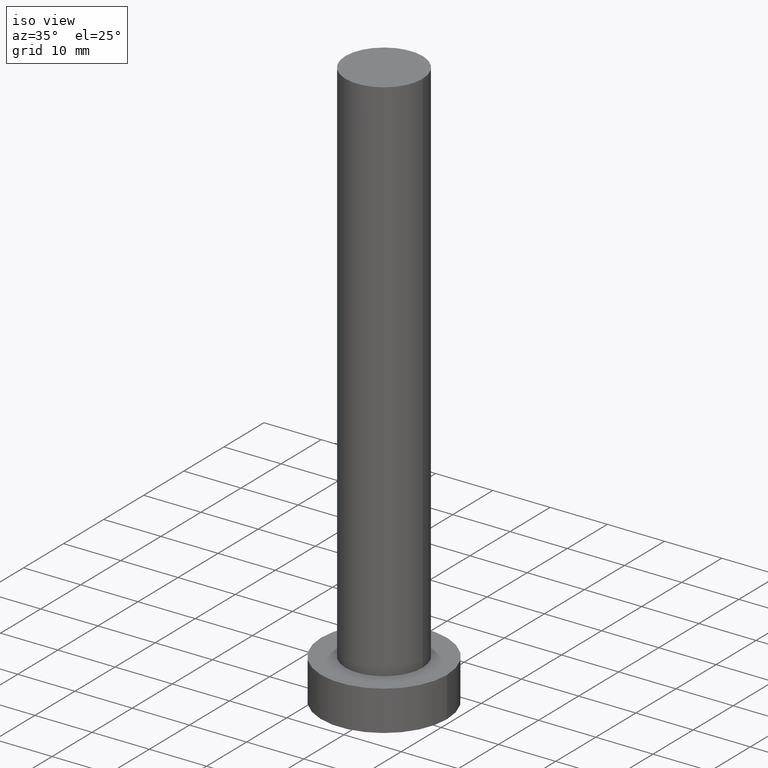
[diagram: clean part render]
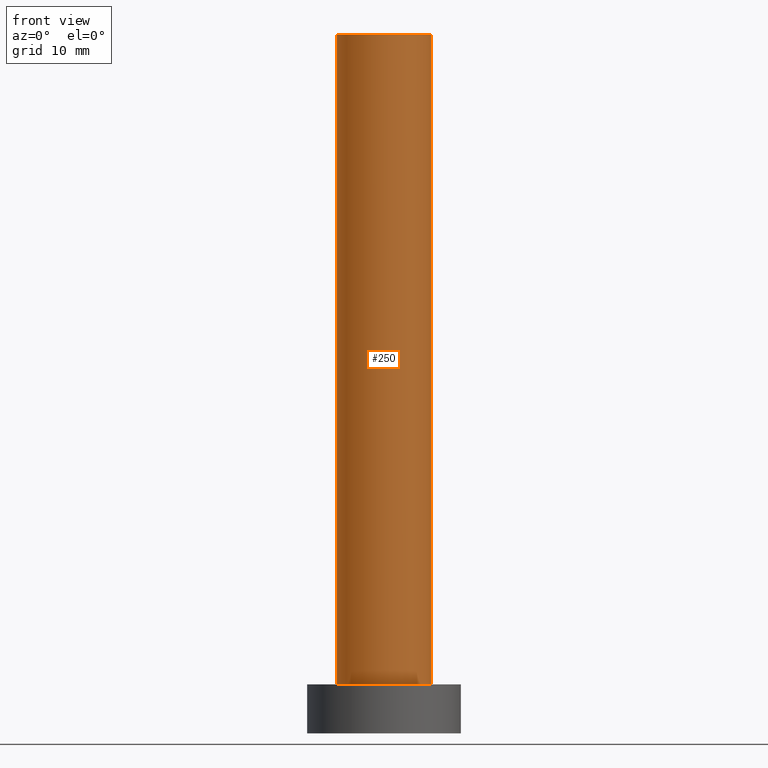
[diagram: tour spotlight — one face highlighted and labeled with its STEP entity id]
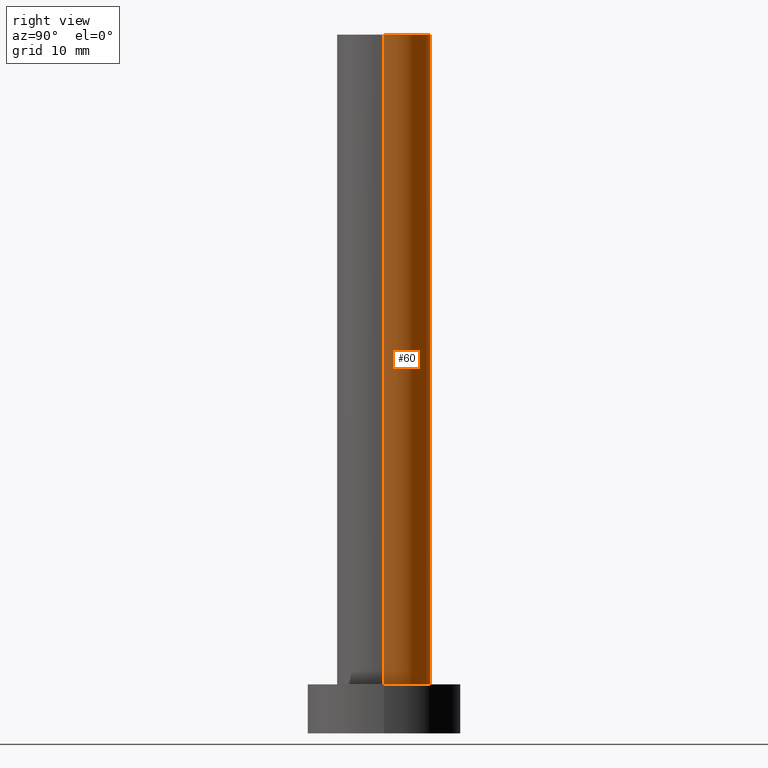
[diagram: tour spotlight — one face highlighted and labeled with its STEP entity id]
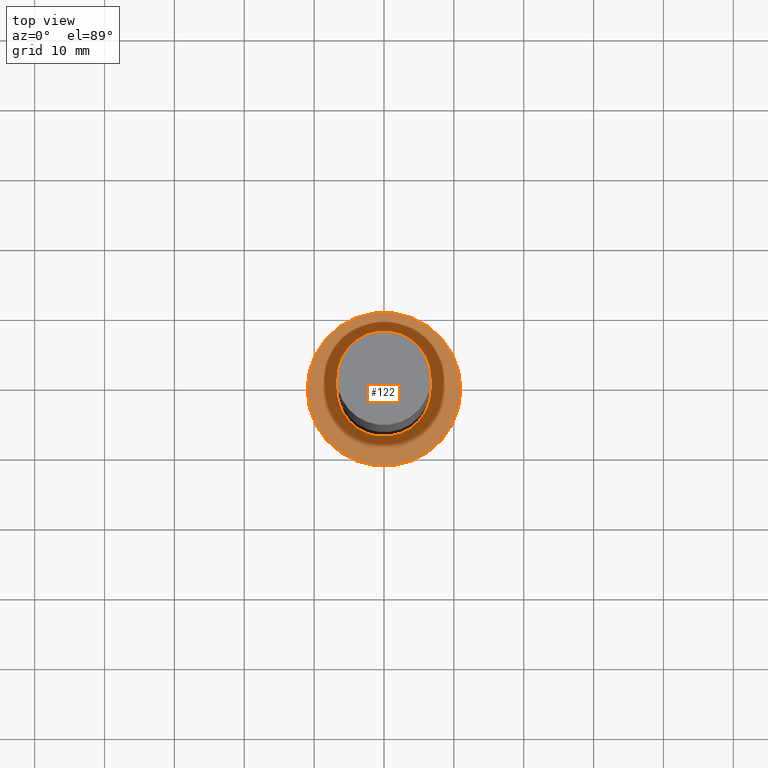
[diagram: tour spotlight — one face highlighted and labeled with its STEP entity id]
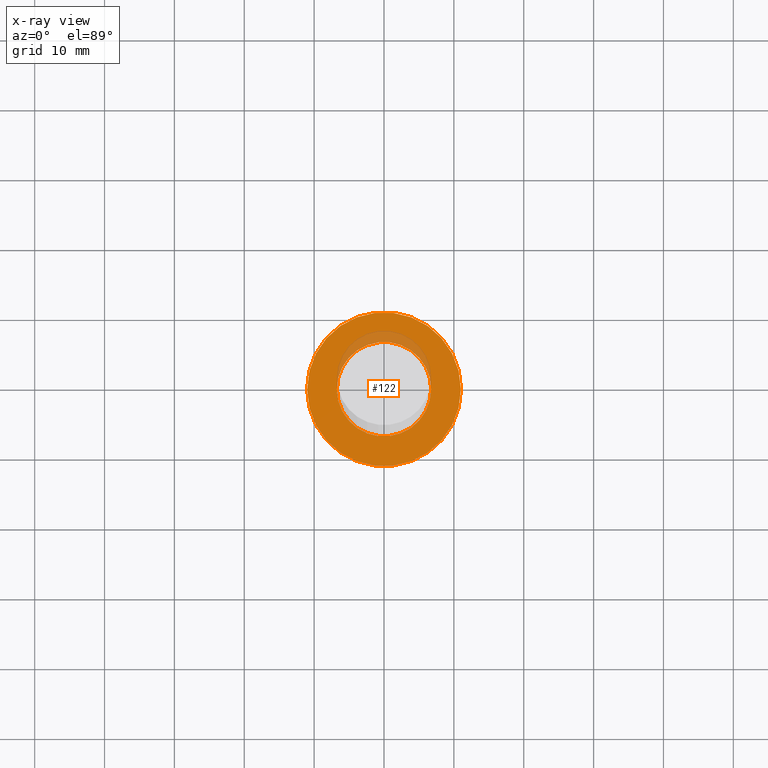
[diagram: x-ray of the same camera — body ghosted, this tour face saturated]
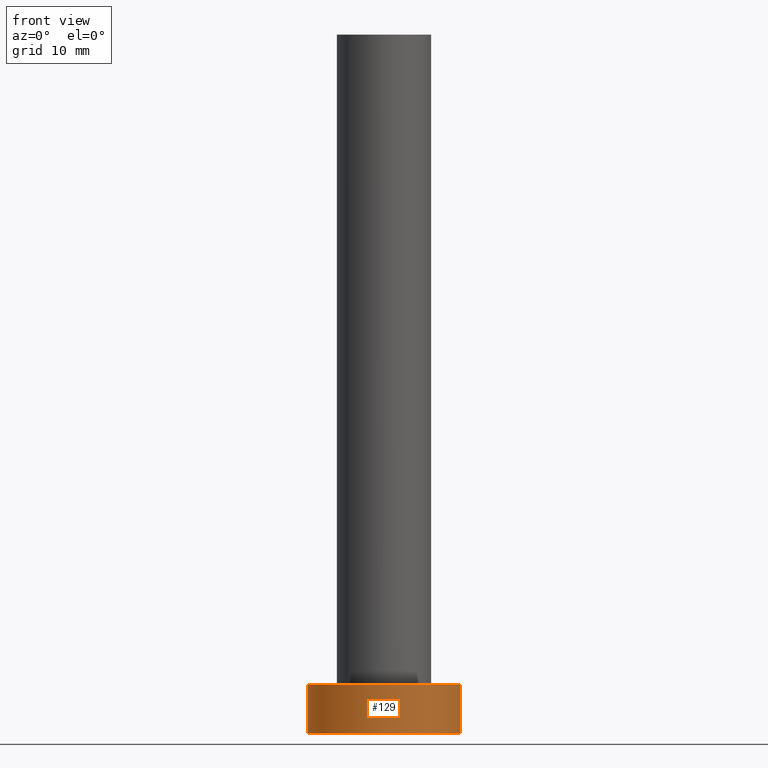
[diagram: tour spotlight — one face highlighted and labeled with its STEP entity id]
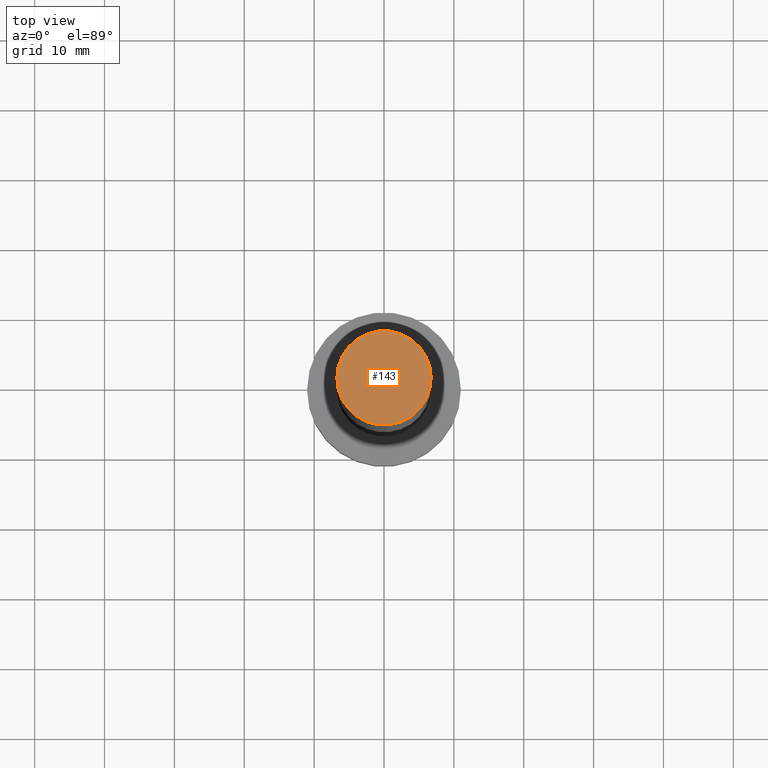
[diagram: tour spotlight — one face highlighted and labeled with its STEP entity id]
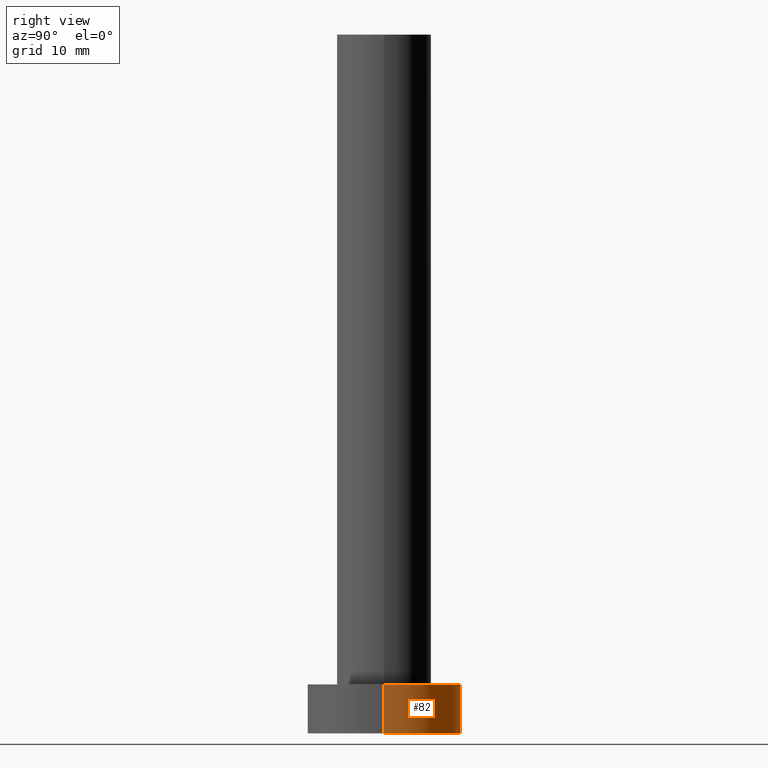
[diagram: tour spotlight — one face highlighted and labeled with its STEP entity id]
A machine part: a face-by-face anatomy tour. The part has 7 B-rep faces; the first image is the clean iso view, then the 6 largest visible faces are spotlighted one at a time (largest first), each with its STEP entity span.

Face 1 — front view, entity #250. In plain terms, the highlighted cylindrical surface (partial cylindrical patch) has radius 6.75 mm, axis along (-0, -0, -1).
Definition (entity closure, byte-faithful):
#2 = DIRECTION ( 'NONE',  ( 1.000000000000000000, 0.000000000000000000, 0.000000000000000000 ) ) ;
#5 = CARTESIAN_POINT ( 'NONE',  ( 6.750000000000000000, 8.266365894244632361E-16, 7.000000000000000000 ) ) ;
#8 = CARTESIAN_POINT ( 'NONE',  ( 0.000000000000000000, 0.000000000000000000, 100.0000000000000000 ) ) ;
#9 = AXIS2_PLACEMENT_3D ( 'NONE', #241, #36, #2 ) ;
#12 = DIRECTION ( 'NONE',  ( -0.000000000000000000, -0.000000000000000000, -1.000000000000000000 ) ) ;
#16 = CARTESIAN_POINT ( 'NONE',  ( -6.750000000000000000, 0.000000000000000000, 7.000000000000000000 ) ) ;
#24 = CARTESIAN_POINT ( 'NONE',  ( 0.000000000000000000, 0.000000000000000000, 100.0000000000000000 ) ) ;
#27 = DIRECTION ( 'NONE',  ( -0.000000000000000000, -0.000000000000000000, -1.000000000000000000 ) ) ;
#28 = AXIS2_PLACEMENT_3D ( 'NONE', #24, #190, #170 ) ;
#29 = VERTEX_POINT ( 'NONE', #5 ) ;
#34 = ORIENTED_EDGE ( 'NONE', *, *, #242, .T. ) ;
#36 = DIRECTION ( 'NONE',  ( 0.000000000000000000, 0.000000000000000000, 1.000000000000000000 ) ) ;
#40 = VECTOR ( 'NONE', #230, 1000.000000000000000 ) ;
#76 = EDGE_CURVE ( 'NONE', #95, #29, #215, .T. ) ;
#89 = LINE ( 'NONE', #149, #40 ) ;
#95 = VERTEX_POINT ( 'NONE', #16 ) ;
#97 = VERTEX_POINT ( 'NONE', #121 ) ;
#109 = CARTESIAN_POINT ( 'NONE',  ( -6.750000000000000000, 0.000000000000000000, 100.0000000000000000 ) ) ;
#111 = DIRECTION ( 'NONE',  ( -1.000000000000000000, 0.000000000000000000, 0.000000000000000000 ) ) ;
#121 = CARTESIAN_POINT ( 'NONE',  ( 6.750000000000000000, 8.266365894244632361E-16, 100.0000000000000000 ) ) ;
#130 = LINE ( 'NONE', #172, #154 ) ;
#146 = CYLINDRICAL_SURFACE ( 'NONE', #169, 6.750000000000000000 ) ;
#149 = CARTESIAN_POINT ( 'NONE',  ( -6.750000000000000000, 0.000000000000000000, 100.0000000000000000 ) ) ;
#150 = ORIENTED_EDGE ( 'NONE', *, *, #76, .T. ) ;
#154 = VECTOR ( 'NONE', #12, 1000.000000000000000 ) ;
#156 = ORIENTED_EDGE ( 'NONE', *, *, #245, .F. ) ;
#169 = AXIS2_PLACEMENT_3D ( 'NONE', #8, #27, #111 ) ;
#170 = DIRECTION ( 'NONE',  ( 1.000000000000000000, 0.000000000000000000, 0.000000000000000000 ) ) ;
#172 = CARTESIAN_POINT ( 'NONE',  ( 6.750000000000000000, 8.266365894244632361E-16, 100.0000000000000000 ) ) ;
#190 = DIRECTION ( 'NONE',  ( 0.000000000000000000, 0.000000000000000000, 1.000000000000000000 ) ) ;
#191 = ORIENTED_EDGE ( 'NONE', *, *, #254, .F. ) ;
#210 = FACE_OUTER_BOUND ( 'NONE', #255, .T. ) ;
#215 = CIRCLE ( 'NONE', #9, 6.750000000000000000 ) ;
#225 = VERTEX_POINT ( 'NONE', #109 ) ;
#230 = DIRECTION ( 'NONE',  ( -0.000000000000000000, -0.000000000000000000, -1.000000000000000000 ) ) ;
#241 = CARTESIAN_POINT ( 'NONE',  ( 0.000000000000000000, 0.000000000000000000, 7.000000000000000000 ) ) ;
#242 = EDGE_CURVE ( 'NONE', #225, #95, #89, .T. ) ;
#245 = EDGE_CURVE ( 'NONE', #225, #97, #252, .T. ) ;
#250 = ADVANCED_FACE ( 'NONE', ( #210 ), #146, .T. ) ;
#252 = CIRCLE ( 'NONE', #28, 6.750000000000000000 ) ;
#254 = EDGE_CURVE ( 'NONE', #97, #29, #130, .T. ) ;
#255 = EDGE_LOOP ( 'NONE', ( #191, #156, #34, #150 ) ) ;

Face 2 — right view, entity #60. In plain terms, the highlighted cylindrical surface (partial cylindrical patch) has radius 6.75 mm, axis along (-0, -0, -1).
Definition (entity closure, byte-faithful):
#3 = FACE_OUTER_BOUND ( 'NONE', #26, .T. ) ;
#5 = CARTESIAN_POINT ( 'NONE',  ( 6.750000000000000000, 8.266365894244632361E-16, 7.000000000000000000 ) ) ;
#6 = DIRECTION ( 'NONE',  ( -0.000000000000000000, -0.000000000000000000, -1.000000000000000000 ) ) ;
#10 = DIRECTION ( 'NONE',  ( 1.000000000000000000, 0.000000000000000000, 0.000000000000000000 ) ) ;
#12 = DIRECTION ( 'NONE',  ( -0.000000000000000000, -0.000000000000000000, -1.000000000000000000 ) ) ;
#15 = ORIENTED_EDGE ( 'NONE', *, *, #18, .T. ) ;
#16 = CARTESIAN_POINT ( 'NONE',  ( -6.750000000000000000, 0.000000000000000000, 7.000000000000000000 ) ) ;
#18 = EDGE_CURVE ( 'NONE', #29, #95, #133, .T. ) ;
#26 = EDGE_LOOP ( 'NONE', ( #75, #35, #15, #116 ) ) ;
#29 = VERTEX_POINT ( 'NONE', #5 ) ;
#35 = ORIENTED_EDGE ( 'NONE', *, *, #254, .T. ) ;
#40 = VECTOR ( 'NONE', #230, 1000.000000000000000 ) ;
#41 = DIRECTION ( 'NONE',  ( 0.000000000000000000, 0.000000000000000000, 1.000000000000000000 ) ) ;
#44 = CARTESIAN_POINT ( 'NONE',  ( 0.000000000000000000, 0.000000000000000000, 100.0000000000000000 ) ) ;
#50 = AXIS2_PLACEMENT_3D ( 'NONE', #163, #41, #185 ) ;
#52 = CIRCLE ( 'NONE', #222, 6.750000000000000000 ) ;
#60 = ADVANCED_FACE ( 'NONE', ( #3 ), #85, .T. ) ;
#68 = DIRECTION ( 'NONE',  ( 0.000000000000000000, 0.000000000000000000, 1.000000000000000000 ) ) ;
#75 = ORIENTED_EDGE ( 'NONE', *, *, #234, .F. ) ;
#85 = CYLINDRICAL_SURFACE ( 'NONE', #235, 6.750000000000000000 ) ;
#89 = LINE ( 'NONE', #149, #40 ) ;
#95 = VERTEX_POINT ( 'NONE', #16 ) ;
#97 = VERTEX_POINT ( 'NONE', #121 ) ;
#109 = CARTESIAN_POINT ( 'NONE',  ( -6.750000000000000000, 0.000000000000000000, 100.0000000000000000 ) ) ;
#116 = ORIENTED_EDGE ( 'NONE', *, *, #242, .F. ) ;
#118 = CARTESIAN_POINT ( 'NONE',  ( 0.000000000000000000, 0.000000000000000000, 100.0000000000000000 ) ) ;
#121 = CARTESIAN_POINT ( 'NONE',  ( 6.750000000000000000, 8.266365894244632361E-16, 100.0000000000000000 ) ) ;
#130 = LINE ( 'NONE', #172, #154 ) ;
#133 = CIRCLE ( 'NONE', #50, 6.750000000000000000 ) ;
#138 = DIRECTION ( 'NONE',  ( -1.000000000000000000, 0.000000000000000000, 0.000000000000000000 ) ) ;
#149 = CARTESIAN_POINT ( 'NONE',  ( -6.750000000000000000, 0.000000000000000000, 100.0000000000000000 ) ) ;
#154 = VECTOR ( 'NONE', #12, 1000.000000000000000 ) ;
#163 = CARTESIAN_POINT ( 'NONE',  ( 0.000000000000000000, 0.000000000000000000, 7.000000000000000000 ) ) ;
#172 = CARTESIAN_POINT ( 'NONE',  ( 6.750000000000000000, 8.266365894244632361E-16, 100.0000000000000000 ) ) ;
#185 = DIRECTION ( 'NONE',  ( 1.000000000000000000, 0.000000000000000000, 0.000000000000000000 ) ) ;
#222 = AXIS2_PLACEMENT_3D ( 'NONE', #44, #68, #10 ) ;
#225 = VERTEX_POINT ( 'NONE', #109 ) ;
#230 = DIRECTION ( 'NONE',  ( -0.000000000000000000, -0.000000000000000000, -1.000000000000000000 ) ) ;
#234 = EDGE_CURVE ( 'NONE', #97, #225, #52, .T. ) ;
#235 = AXIS2_PLACEMENT_3D ( 'NONE', #118, #6, #138 ) ;
#242 = EDGE_CURVE ( 'NONE', #225, #95, #89, .T. ) ;
#254 = EDGE_CURVE ( 'NONE', #97, #29, #130, .T. ) ;

Face 3 — top view, entity #122. An x-ray twin of the same camera follows (body ghosted, this face saturated) — the face is partly hidden behind the body. In plain terms, the highlighted planar face has unit normal (0, 0, 1).
Definition (entity closure, byte-faithful):
#2 = DIRECTION ( 'NONE',  ( 1.000000000000000000, 0.000000000000000000, 0.000000000000000000 ) ) ;
#5 = CARTESIAN_POINT ( 'NONE',  ( 6.750000000000000000, 8.266365894244632361E-16, 7.000000000000000000 ) ) ;
#9 = AXIS2_PLACEMENT_3D ( 'NONE', #241, #36, #2 ) ;
#11 = AXIS2_PLACEMENT_3D ( 'NONE', #167, #188, #249 ) ;
#16 = CARTESIAN_POINT ( 'NONE',  ( -6.750000000000000000, 0.000000000000000000, 7.000000000000000000 ) ) ;
#18 = EDGE_CURVE ( 'NONE', #29, #95, #133, .T. ) ;
#21 = EDGE_LOOP ( 'NONE', ( #113, #194 ) ) ;
#29 = VERTEX_POINT ( 'NONE', #5 ) ;
#32 = AXIS2_PLACEMENT_3D ( 'NONE', #219, #236, #221 ) ;
#36 = DIRECTION ( 'NONE',  ( 0.000000000000000000, 0.000000000000000000, 1.000000000000000000 ) ) ;
#39 = AXIS2_PLACEMENT_3D ( 'NONE', #134, #178, #79 ) ;
#41 = DIRECTION ( 'NONE',  ( 0.000000000000000000, 0.000000000000000000, 1.000000000000000000 ) ) ;
#42 = CARTESIAN_POINT ( 'NONE',  ( -11.00000000000000000, 0.000000000000000000, 7.000000000000000000 ) ) ;
#50 = AXIS2_PLACEMENT_3D ( 'NONE', #163, #41, #185 ) ;
#66 = EDGE_CURVE ( 'NONE', #92, #181, #145, .T. ) ;
#76 = EDGE_CURVE ( 'NONE', #95, #29, #215, .T. ) ;
#79 = DIRECTION ( 'NONE',  ( 1.000000000000000000, 0.000000000000000000, -0.000000000000000000 ) ) ;
#81 = CARTESIAN_POINT ( 'NONE',  ( 11.00000000000000000, 1.347111479062088405E-15, 7.000000000000000000 ) ) ;
#92 = VERTEX_POINT ( 'NONE', #81 ) ;
#95 = VERTEX_POINT ( 'NONE', #16 ) ;
#113 = ORIENTED_EDGE ( 'NONE', *, *, #224, .T. ) ;
#122 = ADVANCED_FACE ( 'NONE', ( #184, #197 ), #135, .T. ) ;
#123 = CIRCLE ( 'NONE', #11, 11.00000000000000000 ) ;
#133 = CIRCLE ( 'NONE', #50, 6.750000000000000000 ) ;
#134 = CARTESIAN_POINT ( 'NONE',  ( 0.000000000000000000, 0.000000000000000000, 7.000000000000000000 ) ) ;
#135 = PLANE ( 'NONE',  #39 ) ;
#145 = CIRCLE ( 'NONE', #32, 11.00000000000000000 ) ;
#147 = EDGE_LOOP ( 'NONE', ( #171, #173 ) ) ;
#163 = CARTESIAN_POINT ( 'NONE',  ( 0.000000000000000000, 0.000000000000000000, 7.000000000000000000 ) ) ;
#167 = CARTESIAN_POINT ( 'NONE',  ( 0.000000000000000000, 0.000000000000000000, 7.000000000000000000 ) ) ;
#171 = ORIENTED_EDGE ( 'NONE', *, *, #76, .F. ) ;
#173 = ORIENTED_EDGE ( 'NONE', *, *, #18, .F. ) ;
#178 = DIRECTION ( 'NONE',  ( 0.000000000000000000, 0.000000000000000000, 1.000000000000000000 ) ) ;
#181 = VERTEX_POINT ( 'NONE', #42 ) ;
#184 = FACE_BOUND ( 'NONE', #147, .T. ) ;
#185 = DIRECTION ( 'NONE',  ( 1.000000000000000000, 0.000000000000000000, 0.000000000000000000 ) ) ;
#188 = DIRECTION ( 'NONE',  ( 0.000000000000000000, 0.000000000000000000, 1.000000000000000000 ) ) ;
#194 = ORIENTED_EDGE ( 'NONE', *, *, #66, .T. ) ;
#197 = FACE_OUTER_BOUND ( 'NONE', #21, .T. ) ;
#215 = CIRCLE ( 'NONE', #9, 6.750000000000000000 ) ;
#219 = CARTESIAN_POINT ( 'NONE',  ( 0.000000000000000000, 0.000000000000000000, 7.000000000000000000 ) ) ;
#221 = DIRECTION ( 'NONE',  ( 1.000000000000000000, 0.000000000000000000, 0.000000000000000000 ) ) ;
#224 = EDGE_CURVE ( 'NONE', #181, #92, #123, .T. ) ;
#236 = DIRECTION ( 'NONE',  ( 0.000000000000000000, 0.000000000000000000, 1.000000000000000000 ) ) ;
#241 = CARTESIAN_POINT ( 'NONE',  ( 0.000000000000000000, 0.000000000000000000, 7.000000000000000000 ) ) ;
#249 = DIRECTION ( 'NONE',  ( 1.000000000000000000, 0.000000000000000000, 0.000000000000000000 ) ) ;

Face 4 — front view, entity #129. In plain terms, the highlighted cylindrical surface (partial cylindrical patch) has radius 11 mm, axis along (-0, -0, -1).
Definition (entity closure, byte-faithful):
#4 = EDGE_CURVE ( 'NONE', #92, #205, #99, .T. ) ;
#11 = AXIS2_PLACEMENT_3D ( 'NONE', #167, #188, #249 ) ;
#19 = DIRECTION ( 'NONE',  ( -1.000000000000000000, 0.000000000000000000, 0.000000000000000000 ) ) ;
#22 = CARTESIAN_POINT ( 'NONE',  ( -11.00000000000000000, 0.000000000000000000, 0.000000000000000000 ) ) ;
#23 = DIRECTION ( 'NONE',  ( 0.000000000000000000, 0.000000000000000000, 1.000000000000000000 ) ) ;
#42 = CARTESIAN_POINT ( 'NONE',  ( -11.00000000000000000, 0.000000000000000000, 7.000000000000000000 ) ) ;
#46 = VERTEX_POINT ( 'NONE', #22 ) ;
#48 = ORIENTED_EDGE ( 'NONE', *, *, #224, .F. ) ;
#51 = CARTESIAN_POINT ( 'NONE',  ( -11.00000000000000000, 0.000000000000000000, 7.000000000000000000 ) ) ;
#57 = DIRECTION ( 'NONE',  ( -0.000000000000000000, -0.000000000000000000, -1.000000000000000000 ) ) ;
#59 = AXIS2_PLACEMENT_3D ( 'NONE', #164, #161, #19 ) ;
#70 = CIRCLE ( 'NONE', #248, 11.00000000000000000 ) ;
#71 = EDGE_CURVE ( 'NONE', #181, #46, #218, .T. ) ;
#77 = ORIENTED_EDGE ( 'NONE', *, *, #196, .T. ) ;
#81 = CARTESIAN_POINT ( 'NONE',  ( 11.00000000000000000, 1.347111479062088405E-15, 7.000000000000000000 ) ) ;
#86 = DIRECTION ( 'NONE',  ( 1.000000000000000000, 0.000000000000000000, 0.000000000000000000 ) ) ;
#92 = VERTEX_POINT ( 'NONE', #81 ) ;
#99 = LINE ( 'NONE', #103, #140 ) ;
#103 = CARTESIAN_POINT ( 'NONE',  ( 11.00000000000000000, 1.347111479062088405E-15, 7.000000000000000000 ) ) ;
#106 = CYLINDRICAL_SURFACE ( 'NONE', #59, 11.00000000000000000 ) ;
#123 = CIRCLE ( 'NONE', #11, 11.00000000000000000 ) ;
#124 = DIRECTION ( 'NONE',  ( -0.000000000000000000, -0.000000000000000000, -1.000000000000000000 ) ) ;
#129 = ADVANCED_FACE ( 'NONE', ( #202 ), #106, .T. ) ;
#140 = VECTOR ( 'NONE', #57, 1000.000000000000000 ) ;
#141 = ORIENTED_EDGE ( 'NONE', *, *, #71, .T. ) ;
#158 = EDGE_LOOP ( 'NONE', ( #212, #48, #141, #77 ) ) ;
#161 = DIRECTION ( 'NONE',  ( -0.000000000000000000, -0.000000000000000000, -1.000000000000000000 ) ) ;
#164 = CARTESIAN_POINT ( 'NONE',  ( 0.000000000000000000, 0.000000000000000000, 7.000000000000000000 ) ) ;
#167 = CARTESIAN_POINT ( 'NONE',  ( 0.000000000000000000, 0.000000000000000000, 7.000000000000000000 ) ) ;
#176 = VECTOR ( 'NONE', #124, 1000.000000000000000 ) ;
#181 = VERTEX_POINT ( 'NONE', #42 ) ;
#188 = DIRECTION ( 'NONE',  ( 0.000000000000000000, 0.000000000000000000, 1.000000000000000000 ) ) ;
#196 = EDGE_CURVE ( 'NONE', #46, #205, #70, .T. ) ;
#202 = FACE_OUTER_BOUND ( 'NONE', #158, .T. ) ;
#205 = VERTEX_POINT ( 'NONE', #246 ) ;
#206 = CARTESIAN_POINT ( 'NONE',  ( 0.000000000000000000, 0.000000000000000000, 0.000000000000000000 ) ) ;
#212 = ORIENTED_EDGE ( 'NONE', *, *, #4, .F. ) ;
#218 = LINE ( 'NONE', #51, #176 ) ;
#224 = EDGE_CURVE ( 'NONE', #181, #92, #123, .T. ) ;
#246 = CARTESIAN_POINT ( 'NONE',  ( 11.00000000000000000, 1.347111479062088405E-15, 0.000000000000000000 ) ) ;
#248 = AXIS2_PLACEMENT_3D ( 'NONE', #206, #23, #86 ) ;
#249 = DIRECTION ( 'NONE',  ( 1.000000000000000000, 0.000000000000000000, 0.000000000000000000 ) ) ;

Face 5 — top view, entity #143. In plain terms, the highlighted planar face has unit normal (0, 0, 1).
Definition (entity closure, byte-faithful):
#10 = DIRECTION ( 'NONE',  ( 1.000000000000000000, 0.000000000000000000, 0.000000000000000000 ) ) ;
#24 = CARTESIAN_POINT ( 'NONE',  ( 0.000000000000000000, 0.000000000000000000, 100.0000000000000000 ) ) ;
#28 = AXIS2_PLACEMENT_3D ( 'NONE', #24, #190, #170 ) ;
#44 = CARTESIAN_POINT ( 'NONE',  ( 0.000000000000000000, 0.000000000000000000, 100.0000000000000000 ) ) ;
#52 = CIRCLE ( 'NONE', #222, 6.750000000000000000 ) ;
#58 = DIRECTION ( 'NONE',  ( 0.000000000000000000, 0.000000000000000000, 1.000000000000000000 ) ) ;
#62 = CARTESIAN_POINT ( 'NONE',  ( 0.000000000000000000, 0.000000000000000000, 100.0000000000000000 ) ) ;
#68 = DIRECTION ( 'NONE',  ( 0.000000000000000000, 0.000000000000000000, 1.000000000000000000 ) ) ;
#97 = VERTEX_POINT ( 'NONE', #121 ) ;
#109 = CARTESIAN_POINT ( 'NONE',  ( -6.750000000000000000, 0.000000000000000000, 100.0000000000000000 ) ) ;
#110 = AXIS2_PLACEMENT_3D ( 'NONE', #62, #58, #238 ) ;
#121 = CARTESIAN_POINT ( 'NONE',  ( 6.750000000000000000, 8.266365894244632361E-16, 100.0000000000000000 ) ) ;
#143 = ADVANCED_FACE ( 'NONE', ( #166 ), #243, .T. ) ;
#151 = ORIENTED_EDGE ( 'NONE', *, *, #234, .T. ) ;
#166 = FACE_OUTER_BOUND ( 'NONE', #195, .T. ) ;
#170 = DIRECTION ( 'NONE',  ( 1.000000000000000000, 0.000000000000000000, 0.000000000000000000 ) ) ;
#190 = DIRECTION ( 'NONE',  ( 0.000000000000000000, 0.000000000000000000, 1.000000000000000000 ) ) ;
#195 = EDGE_LOOP ( 'NONE', ( #229, #151 ) ) ;
#222 = AXIS2_PLACEMENT_3D ( 'NONE', #44, #68, #10 ) ;
#225 = VERTEX_POINT ( 'NONE', #109 ) ;
#229 = ORIENTED_EDGE ( 'NONE', *, *, #245, .T. ) ;
#234 = EDGE_CURVE ( 'NONE', #97, #225, #52, .T. ) ;
#238 = DIRECTION ( 'NONE',  ( 1.000000000000000000, 0.000000000000000000, -0.000000000000000000 ) ) ;
#243 = PLANE ( 'NONE',  #110 ) ;
#245 = EDGE_CURVE ( 'NONE', #225, #97, #252, .T. ) ;
#252 = CIRCLE ( 'NONE', #28, 6.750000000000000000 ) ;

Face 6 — right view, entity #82. In plain terms, the highlighted cylindrical surface (partial cylindrical patch) has radius 11 mm, axis along (-0, -0, -1).
Definition (entity closure, byte-faithful):
#4 = EDGE_CURVE ( 'NONE', #92, #205, #99, .T. ) ;
#13 = ORIENTED_EDGE ( 'NONE', *, *, #177, .T. ) ;
#22 = CARTESIAN_POINT ( 'NONE',  ( -11.00000000000000000, 0.000000000000000000, 0.000000000000000000 ) ) ;
#32 = AXIS2_PLACEMENT_3D ( 'NONE', #219, #236, #221 ) ;
#38 = CYLINDRICAL_SURFACE ( 'NONE', #189, 11.00000000000000000 ) ;
#42 = CARTESIAN_POINT ( 'NONE',  ( -11.00000000000000000, 0.000000000000000000, 7.000000000000000000 ) ) ;
#46 = VERTEX_POINT ( 'NONE', #22 ) ;
#51 = CARTESIAN_POINT ( 'NONE',  ( -11.00000000000000000, 0.000000000000000000, 7.000000000000000000 ) ) ;
#55 = FACE_OUTER_BOUND ( 'NONE', #69, .T. ) ;
#57 = DIRECTION ( 'NONE',  ( -0.000000000000000000, -0.000000000000000000, -1.000000000000000000 ) ) ;
#66 = EDGE_CURVE ( 'NONE', #92, #181, #145, .T. ) ;
#69 = EDGE_LOOP ( 'NONE', ( #199, #240, #13, #90 ) ) ;
#71 = EDGE_CURVE ( 'NONE', #181, #46, #218, .T. ) ;
#80 = DIRECTION ( 'NONE',  ( -0.000000000000000000, -0.000000000000000000, -1.000000000000000000 ) ) ;
#81 = CARTESIAN_POINT ( 'NONE',  ( 11.00000000000000000, 1.347111479062088405E-15, 7.000000000000000000 ) ) ;
#82 = ADVANCED_FACE ( 'NONE', ( #55 ), #38, .T. ) ;
#90 = ORIENTED_EDGE ( 'NONE', *, *, #71, .F. ) ;
#92 = VERTEX_POINT ( 'NONE', #81 ) ;
#99 = LINE ( 'NONE', #103, #140 ) ;
#101 = CARTESIAN_POINT ( 'NONE',  ( 0.000000000000000000, 0.000000000000000000, 7.000000000000000000 ) ) ;
#103 = CARTESIAN_POINT ( 'NONE',  ( 11.00000000000000000, 1.347111479062088405E-15, 7.000000000000000000 ) ) ;
#124 = DIRECTION ( 'NONE',  ( -0.000000000000000000, -0.000000000000000000, -1.000000000000000000 ) ) ;
#126 = DIRECTION ( 'NONE',  ( 1.000000000000000000, 0.000000000000000000, 0.000000000000000000 ) ) ;
#140 = VECTOR ( 'NONE', #57, 1000.000000000000000 ) ;
#142 = CARTESIAN_POINT ( 'NONE',  ( 0.000000000000000000, 0.000000000000000000, 0.000000000000000000 ) ) ;
#145 = CIRCLE ( 'NONE', #32, 11.00000000000000000 ) ;
#176 = VECTOR ( 'NONE', #124, 1000.000000000000000 ) ;
#177 = EDGE_CURVE ( 'NONE', #205, #46, #211, .T. ) ;
#181 = VERTEX_POINT ( 'NONE', #42 ) ;
#182 = DIRECTION ( 'NONE',  ( -1.000000000000000000, 0.000000000000000000, 0.000000000000000000 ) ) ;
#189 = AXIS2_PLACEMENT_3D ( 'NONE', #101, #80, #182 ) ;
#199 = ORIENTED_EDGE ( 'NONE', *, *, #66, .F. ) ;
#200 = AXIS2_PLACEMENT_3D ( 'NONE', #142, #226, #126 ) ;
#205 = VERTEX_POINT ( 'NONE', #246 ) ;
#211 = CIRCLE ( 'NONE', #200, 11.00000000000000000 ) ;
#218 = LINE ( 'NONE', #51, #176 ) ;
#219 = CARTESIAN_POINT ( 'NONE',  ( 0.000000000000000000, 0.000000000000000000, 7.000000000000000000 ) ) ;
#221 = DIRECTION ( 'NONE',  ( 1.000000000000000000, 0.000000000000000000, 0.000000000000000000 ) ) ;
#226 = DIRECTION ( 'NONE',  ( 0.000000000000000000, 0.000000000000000000, 1.000000000000000000 ) ) ;
#236 = DIRECTION ( 'NONE',  ( 0.000000000000000000, 0.000000000000000000, 1.000000000000000000 ) ) ;
#240 = ORIENTED_EDGE ( 'NONE', *, *, #4, .T. ) ;
#246 = CARTESIAN_POINT ( 'NONE',  ( 11.00000000000000000, 1.347111479062088405E-15, 0.000000000000000000 ) ) ;